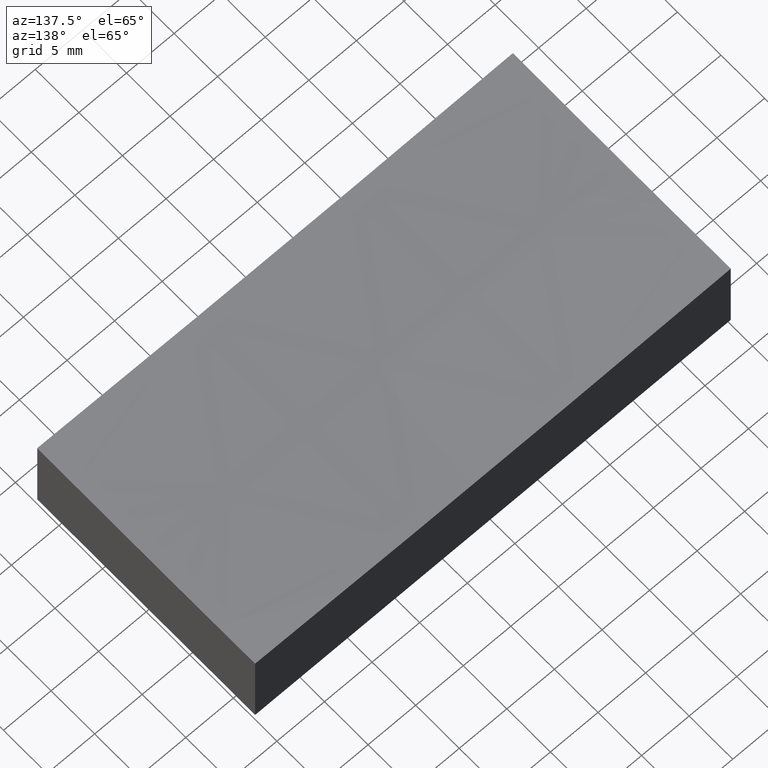
[diagram: clean part render]
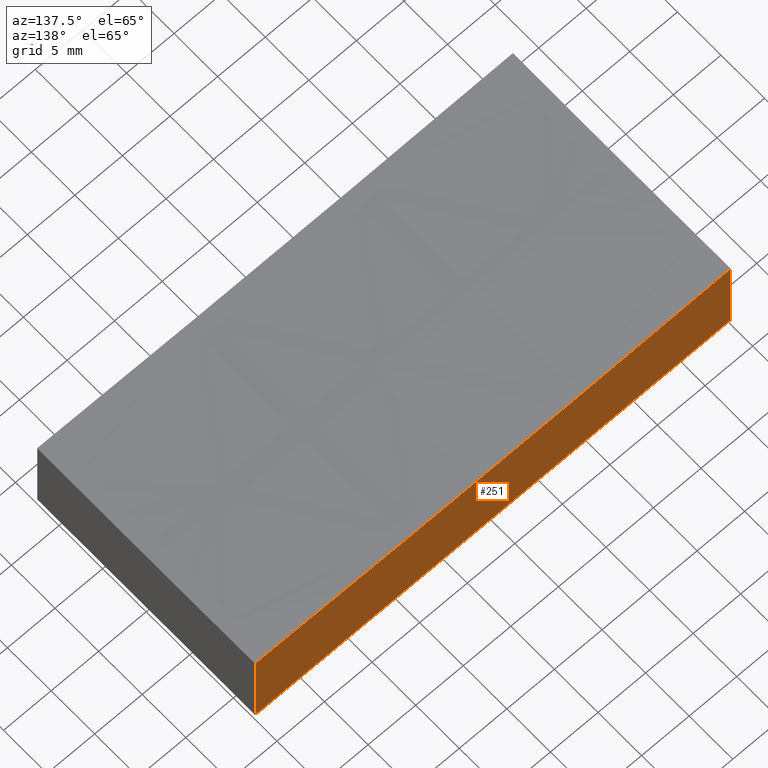
[diagram: same view with one face highlighted and labeled with its STEP entity id]
A machine part, auxiliary view. The second image highlights one B-rep face of the part: STEP entity #251.
In plain terms, the highlighted planar face has unit normal (0, -1, 0).
Its self-contained STEP definition (entity closure, byte-faithful):
#5 = LINE ( 'NONE', #66, #110 ) ;
#6 = ORIENTED_EDGE ( 'NONE', *, *, #218, .T. ) ;
#19 = DIRECTION ( 'NONE',  ( 0.000000000000000000, 0.000000000000000000, -1.000000000000000000 ) ) ;
#30 = CARTESIAN_POINT ( 'NONE',  ( -25.00000000000000000, 12.50000000000000000, 0.000000000000000000 ) ) ;
#34 = CARTESIAN_POINT ( 'NONE',  ( 25.00000000000000355, 12.50000000000000000, 9.390701323762185027 ) ) ;
#35 = EDGE_CURVE ( 'NONE', #201, #175, #5, .T. ) ;
#36 = CARTESIAN_POINT ( 'NONE',  ( 0.000000000000000000, 12.50000000000000000, 1008.999999999999886 ) ) ;
#37 = DIRECTION ( 'NONE',  ( -0.000000000000000000, -0.000000000000000000, -1.000000000000000000 ) ) ;
#43 = VECTOR ( 'NONE', #208, 1000.000000000000000 ) ;
#49 = CARTESIAN_POINT ( 'NONE',  ( -25.00000000000000000, 12.50000000000000000, 0.000000000000000000 ) ) ;
#58 = DIRECTION ( 'NONE',  ( -0.000000000000000000, 1.000000000000000000, -0.000000000000000000 ) ) ;
#66 = CARTESIAN_POINT ( 'NONE',  ( -25.00000000000000000, 12.50000000000000000, 15.00000000000000000 ) ) ;
#79 = ORIENTED_EDGE ( 'NONE', *, *, #35, .F. ) ;
#103 = VERTEX_POINT ( 'NONE', #34 ) ;
#106 = DIRECTION ( 'NONE',  ( -0.000000000000000000, -0.000000000000000000, -1.000000000000000000 ) ) ;
#110 = VECTOR ( 'NONE', #106, 1000.000000000000000 ) ;
#118 = DIRECTION ( 'NONE',  ( 0.000000000000000000, -0.000000000000000000, -1.000000000000000000 ) ) ;
#120 = CARTESIAN_POINT ( 'NONE',  ( -25.00000000000000000, 12.50000000000000000, 9.390701323762185027 ) ) ;
#121 = ORIENTED_EDGE ( 'NONE', *, *, #196, .F. ) ;
#138 = CARTESIAN_POINT ( 'NONE',  ( 25.00000000000000355, 12.50000000000000000, 15.00000000000000000 ) ) ;
#141 = AXIS2_PLACEMENT_3D ( 'NONE', #252, #216, #118 ) ;
#148 = VECTOR ( 'NONE', #37, 1000.000000000000000 ) ;
#150 = EDGE_LOOP ( 'NONE', ( #121, #6, #164, #79 ) ) ;
#157 = PLANE ( 'NONE',  #141 ) ;
#159 = LINE ( 'NONE', #138, #148 ) ;
#164 = ORIENTED_EDGE ( 'NONE', *, *, #173, .T. ) ;
#173 = EDGE_CURVE ( 'NONE', #195, #175, #225, .T. ) ;
#175 = VERTEX_POINT ( 'NONE', #30 ) ;
#195 = VERTEX_POINT ( 'NONE', #250 ) ;
#196 = EDGE_CURVE ( 'NONE', #103, #201, #220, .T. ) ;
#201 = VERTEX_POINT ( 'NONE', #120 ) ;
#208 = DIRECTION ( 'NONE',  ( -1.000000000000000000, -0.000000000000000000, -0.000000000000000000 ) ) ;
#210 = AXIS2_PLACEMENT_3D ( 'NONE', #36, #58, #19 ) ;
#214 = FACE_OUTER_BOUND ( 'NONE', #150, .T. ) ;
#216 = DIRECTION ( 'NONE',  ( 0.000000000000000000, -1.000000000000000000, 0.000000000000000000 ) ) ;
#218 = EDGE_CURVE ( 'NONE', #103, #195, #159, .T. ) ;
#220 = CIRCLE ( 'NONE', #210, 999.9218719480036270 ) ;
#225 = LINE ( 'NONE', #49, #43 ) ;
#250 = CARTESIAN_POINT ( 'NONE',  ( 25.00000000000000355, 12.50000000000000000, 0.000000000000000000 ) ) ;
#251 = ADVANCED_FACE ( 'NONE', ( #214 ), #157, .F. ) ;
#252 = CARTESIAN_POINT ( 'NONE',  ( -25.00000000000000000, 12.50000000000000000, 15.00000000000000000 ) ) ;